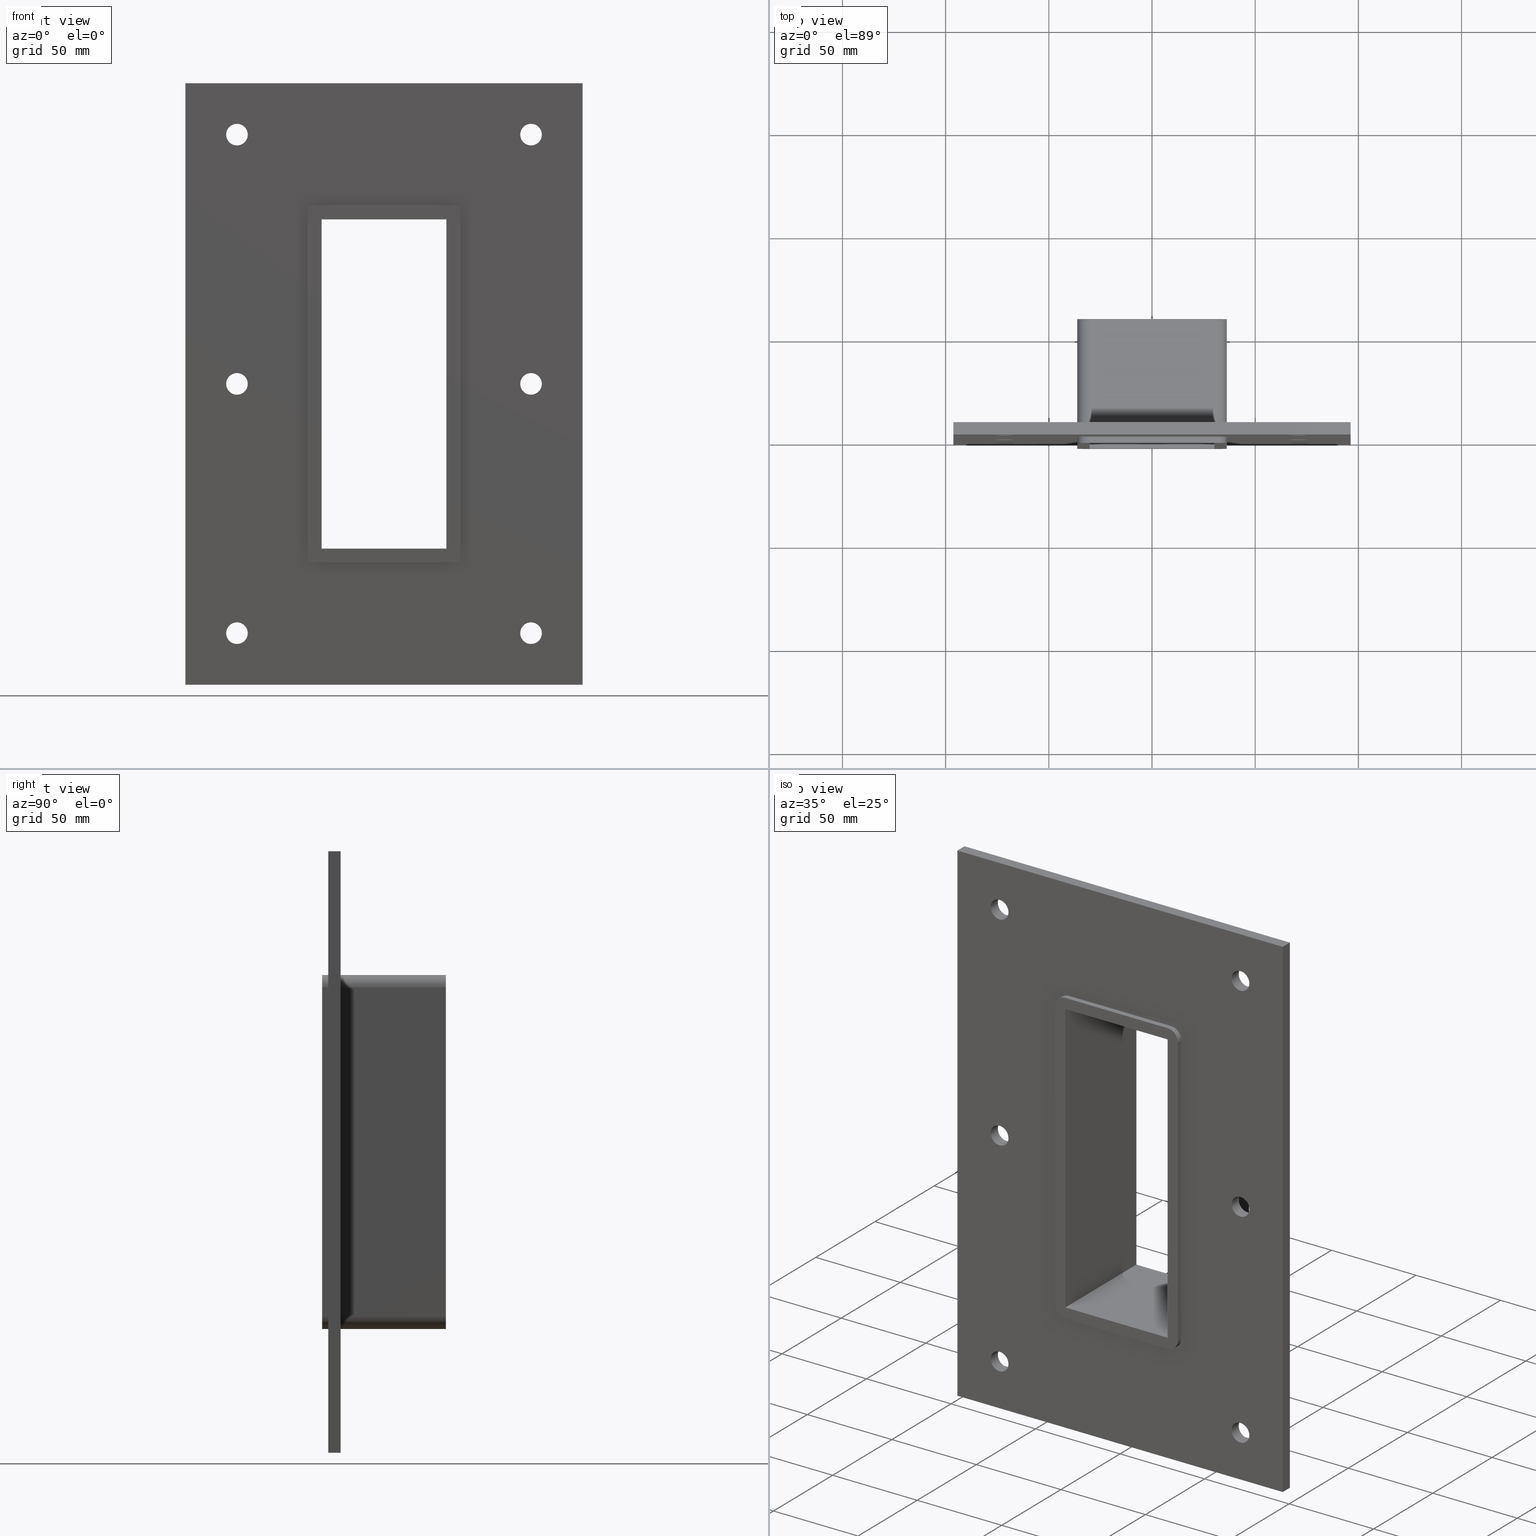
[diagram: canonical four-view strip — front | top / right | iso, engineering-drawing reading convention]
A machine part, canonical four-view strip (front | top / right | iso — engineering-drawing reading convention). The complete STEP part file that produces these views, byte-faithful:
ISO-10303-21;
HEADER;
/****************************************************************
 * Generated by software with PDElib inside                    *
 * PDElib Version v51a, created Wed 11/30/2011                  *
 * ITI Transcendata (http://www.transcendata.com/)              *
 ****************************************************************/
FILE_DESCRIPTION((''),'2;1');
FILE_NAME('L:\\roxtec-se\\Projects\\Ongoing_Projects\\12403 Transit Designer\\Product-data\\Product Data\\Reviwed & Approved\\Review\\GH\\STEP\\GH3X1.stp','2015-02-20T11:21:10',('se-emikul'),(''),'Autodesk Inventor 2013','Autodesk Inventor 2013','');
FILE_SCHEMA(('AUTOMOTIVE_DESIGN { 1 0 10303 214 1 1 1 1 }'));
ENDSEC;
DATA;
#5=APPLICATION_CONTEXT('automotive design');
#6=APPLICATION_PROTOCOL_DEFINITION('International Standard','automotive_design',2001,#5);
#7=PRODUCT_CONTEXT('',#5,'mechanical');
#8=PRODUCT('GH3X1','GH3X1',$,(#7));
#9=PRODUCT_RELATED_PRODUCT_CATEGORY('part',$,(#8));
#10=PRODUCT_DEFINITION_FORMATION('',$,#8);
#11=PRODUCT_DEFINITION_CONTEXT('part definition',#5,'design');
#12=PRODUCT_DEFINITION('',$,#10,#11);
#18=(NAMED_UNIT(*)PLANE_ANGLE_UNIT()SI_UNIT($,.RADIAN.));
#19=DIMENSIONAL_EXPONENTS(0.0,0.0,0.0,0.0,0.0,0.0,0.0);
#20=PLANE_ANGLE_MEASURE_WITH_UNIT(PLANE_ANGLE_MEASURE(0.0174532925),#18);
#24=(CONVERSION_BASED_UNIT('DEGREE',#20)NAMED_UNIT(#19)PLANE_ANGLE_UNIT());
#28=(NAMED_UNIT(*)SI_UNIT($,.STERADIAN.)SOLID_ANGLE_UNIT());
#32=(LENGTH_UNIT()NAMED_UNIT(*)SI_UNIT(.MILLI.,.METRE.));
#34=UNCERTAINTY_MEASURE_WITH_UNIT(LENGTH_MEASURE(0.01),#32,'DISTANCE_ACCURACY_VALUE','');
#36=(GEOMETRIC_REPRESENTATION_CONTEXT(3)GLOBAL_UNCERTAINTY_ASSIGNED_CONTEXT((#34))GLOBAL_UNIT_ASSIGNED_CONTEXT((#24,#28,#32))REPRESENTATION_CONTEXT('None','None'));
#37=AXIS2_PLACEMENT_3D('',#38,#39,#40);
#38=CARTESIAN_POINT('',(0.0,0.0,0.0));
#39=DIRECTION('',(0.0,0.0,1.0));
#40=DIRECTION('',(1.0,0.0,0.0));
#41=SHAPE_REPRESENTATION('',(#37),#36);
#42=PRODUCT_DEFINITION_SHAPE('','',#12);
#43=SHAPE_DEFINITION_REPRESENTATION(#42,#41);
#49=(NAMED_UNIT(*)PLANE_ANGLE_UNIT()SI_UNIT($,.RADIAN.));
#50=DIMENSIONAL_EXPONENTS(0.0,0.0,0.0,0.0,0.0,0.0,0.0);
#51=PLANE_ANGLE_MEASURE_WITH_UNIT(PLANE_ANGLE_MEASURE(0.0174532925),#49);
#55=(CONVERSION_BASED_UNIT('DEGREE',#51)NAMED_UNIT(#50)PLANE_ANGLE_UNIT());
#59=(NAMED_UNIT(*)SI_UNIT($,.STERADIAN.)SOLID_ANGLE_UNIT());
#63=(LENGTH_UNIT()NAMED_UNIT(*)SI_UNIT(.MILLI.,.METRE.));
#65=UNCERTAINTY_MEASURE_WITH_UNIT(LENGTH_MEASURE(0.000001),#63,'DISTANCE_ACCURACY_VALUE','');
#67=(GEOMETRIC_REPRESENTATION_CONTEXT(3)GLOBAL_UNCERTAINTY_ASSIGNED_CONTEXT((#65))GLOBAL_UNIT_ASSIGNED_CONTEXT((#55,#59,#63))REPRESENTATION_CONTEXT('','3D'));
#68=CARTESIAN_POINT('',(-71.250000000000114,354.44110935386709,-120.75));
#69=DIRECTION('',(0.0,-1.0,0.0));
#70=DIRECTION('',(1.0,0.0,0.0));
#71=AXIS2_PLACEMENT_3D('',#68,#69,#70);
#72=CYLINDRICAL_SURFACE('',#71,5.25);
#73=CARTESIAN_POINT('',(-76.500000000000114,6.000000000000014,-120.75));
#74=VERTEX_POINT('',#73);
#75=CARTESIAN_POINT('',(-71.250000000000114,6.000000000000014,-120.75));
#76=DIRECTION('',(0.0,-1.0,0.0));
#77=DIRECTION('',(1.0,0.0,0.0));
#78=AXIS2_PLACEMENT_3D('',#75,#76,#77);
#79=CIRCLE('',#78,5.25);
#80=EDGE_CURVE('',#74,#74,#79,.T.);
#81=ORIENTED_EDGE('',*,*,#80,.F.);
#82=EDGE_LOOP('',(#81));
#83=FACE_OUTER_BOUND('',#82,.T.);
#84=CARTESIAN_POINT('',(-66.000000000000099,0.0,-120.75));
#85=VERTEX_POINT('',#84);
#86=CARTESIAN_POINT('',(-71.250000000000114,0.0,-120.75));
#87=DIRECTION('',(0.0,1.0,0.0));
#88=DIRECTION('',(1.0,0.0,0.0));
#89=AXIS2_PLACEMENT_3D('',#86,#87,#88);
#90=CIRCLE('',#89,5.25);
#91=EDGE_CURVE('',#85,#85,#90,.T.);
#92=ORIENTED_EDGE('',*,*,#91,.F.);
#93=EDGE_LOOP('',(#92));
#94=FACE_BOUND('',#93,.T.);
#95=ADVANCED_FACE('',(#83,#94),#72,.F.);
#96=CARTESIAN_POINT('',(71.249999999999886,354.44110935386709,0.050000000000008));
#97=DIRECTION('',(0.0,-1.0,0.0));
#98=DIRECTION('',(1.0,0.0,0.0));
#99=AXIS2_PLACEMENT_3D('',#96,#97,#98);
#100=CYLINDRICAL_SURFACE('',#99,5.25);
#101=CARTESIAN_POINT('',(65.999999999999886,6.000000000000014,0.050000000000008));
#102=VERTEX_POINT('',#101);
#103=CARTESIAN_POINT('',(71.249999999999886,6.000000000000014,0.050000000000008));
#104=DIRECTION('',(0.0,-1.0,0.0));
#105=DIRECTION('',(1.0,0.0,0.0));
#106=AXIS2_PLACEMENT_3D('',#103,#104,#105);
#107=CIRCLE('',#106,5.25);
#108=EDGE_CURVE('',#102,#102,#107,.T.);
#109=ORIENTED_EDGE('',*,*,#108,.F.);
#110=EDGE_LOOP('',(#109));
#111=FACE_OUTER_BOUND('',#110,.T.);
#112=CARTESIAN_POINT('',(76.499999999999901,0.0,0.050000000000008));
#113=VERTEX_POINT('',#112);
#114=CARTESIAN_POINT('',(71.249999999999886,0.0,0.050000000000008));
#115=DIRECTION('',(0.0,1.0,0.0));
#116=DIRECTION('',(1.0,0.0,0.0));
#117=AXIS2_PLACEMENT_3D('',#114,#115,#116);
#118=CIRCLE('',#117,5.25);
#119=EDGE_CURVE('',#113,#113,#118,.T.);
#120=ORIENTED_EDGE('',*,*,#119,.F.);
#121=EDGE_LOOP('',(#120));
#122=FACE_BOUND('',#121,.T.);
#123=ADVANCED_FACE('',(#111,#122),#100,.F.);
#124=CARTESIAN_POINT('',(-71.250000000000114,354.44110935386709,0.050000000000008));
#125=DIRECTION('',(0.0,-1.0,0.0));
#126=DIRECTION('',(1.0,0.0,0.0));
#127=AXIS2_PLACEMENT_3D('',#124,#125,#126);
#128=CYLINDRICAL_SURFACE('',#127,5.25);
#129=CARTESIAN_POINT('',(-76.500000000000114,6.000000000000014,0.050000000000008));
#130=VERTEX_POINT('',#129);
#131=CARTESIAN_POINT('',(-71.250000000000114,6.000000000000014,0.050000000000008));
#132=DIRECTION('',(0.0,-1.0,0.0));
#133=DIRECTION('',(1.0,0.0,0.0));
#134=AXIS2_PLACEMENT_3D('',#131,#132,#133);
#135=CIRCLE('',#134,5.25);
#136=EDGE_CURVE('',#130,#130,#135,.T.);
#137=ORIENTED_EDGE('',*,*,#136,.F.);
#138=EDGE_LOOP('',(#137));
#139=FACE_OUTER_BOUND('',#138,.T.);
#140=CARTESIAN_POINT('',(-66.000000000000099,0.0,0.050000000000008));
#141=VERTEX_POINT('',#140);
#142=CARTESIAN_POINT('',(-71.250000000000114,0.0,0.050000000000008));
#143=DIRECTION('',(0.0,1.0,0.0));
#144=DIRECTION('',(1.0,0.0,0.0));
#145=AXIS2_PLACEMENT_3D('',#142,#143,#144);
#146=CIRCLE('',#145,5.25);
#147=EDGE_CURVE('',#141,#141,#146,.T.);
#148=ORIENTED_EDGE('',*,*,#147,.F.);
#149=EDGE_LOOP('',(#148));
#150=FACE_BOUND('',#149,.T.);
#151=ADVANCED_FACE('',(#139,#150),#128,.F.);
#152=CARTESIAN_POINT('',(71.249999999999886,354.44110935386709,-120.75));
#153=DIRECTION('',(0.0,-1.0,0.0));
#154=DIRECTION('',(1.0,0.0,0.0));
#155=AXIS2_PLACEMENT_3D('',#152,#153,#154);
#156=CYLINDRICAL_SURFACE('',#155,5.25);
#157=CARTESIAN_POINT('',(65.999999999999886,6.000000000000014,-120.75));
#158=VERTEX_POINT('',#157);
#159=CARTESIAN_POINT('',(71.249999999999886,6.000000000000014,-120.75));
#160=DIRECTION('',(0.0,-1.0,0.0));
#161=DIRECTION('',(1.0,0.0,0.0));
#162=AXIS2_PLACEMENT_3D('',#159,#160,#161);
#163=CIRCLE('',#162,5.25);
#164=EDGE_CURVE('',#158,#158,#163,.T.);
#165=ORIENTED_EDGE('',*,*,#164,.F.);
#166=EDGE_LOOP('',(#165));
#167=FACE_OUTER_BOUND('',#166,.T.);
#168=CARTESIAN_POINT('',(76.499999999999901,0.0,-120.75));
#169=VERTEX_POINT('',#168);
#170=CARTESIAN_POINT('',(71.249999999999886,0.0,-120.75));
#171=DIRECTION('',(0.0,1.0,0.0));
#172=DIRECTION('',(1.0,0.0,0.0));
#173=AXIS2_PLACEMENT_3D('',#170,#171,#172);
#174=CIRCLE('',#173,5.25);
#175=EDGE_CURVE('',#169,#169,#174,.T.);
#176=ORIENTED_EDGE('',*,*,#175,.F.);
#177=EDGE_LOOP('',(#176));
#178=FACE_BOUND('',#177,.T.);
#179=ADVANCED_FACE('',(#167,#178),#156,.F.);
#180=CARTESIAN_POINT('',(-71.250000000000114,354.44110935386709,120.85000000000001));
#181=DIRECTION('',(0.0,-1.0,0.0));
#182=DIRECTION('',(1.0,0.0,0.0));
#183=AXIS2_PLACEMENT_3D('',#180,#181,#182);
#184=CYLINDRICAL_SURFACE('',#183,5.25);
#185=CARTESIAN_POINT('',(-76.500000000000114,6.000000000000014,120.85000000000001));
#186=VERTEX_POINT('',#185);
#187=CARTESIAN_POINT('',(-71.250000000000114,6.000000000000014,120.85000000000001));
#188=DIRECTION('',(0.0,-1.0,0.0));
#189=DIRECTION('',(1.0,0.0,0.0));
#190=AXIS2_PLACEMENT_3D('',#187,#188,#189);
#191=CIRCLE('',#190,5.25);
#192=EDGE_CURVE('',#186,#186,#191,.T.);
#193=ORIENTED_EDGE('',*,*,#192,.F.);
#194=EDGE_LOOP('',(#193));
#195=FACE_OUTER_BOUND('',#194,.T.);
#196=CARTESIAN_POINT('',(-66.000000000000099,0.0,120.85000000000001));
#197=VERTEX_POINT('',#196);
#198=CARTESIAN_POINT('',(-71.250000000000114,0.0,120.85000000000001));
#199=DIRECTION('',(0.0,1.0,0.0));
#200=DIRECTION('',(1.0,0.0,0.0));
#201=AXIS2_PLACEMENT_3D('',#198,#199,#200);
#202=CIRCLE('',#201,5.25);
#203=EDGE_CURVE('',#197,#197,#202,.T.);
#204=ORIENTED_EDGE('',*,*,#203,.F.);
#205=EDGE_LOOP('',(#204));
#206=FACE_BOUND('',#205,.T.);
#207=ADVANCED_FACE('',(#195,#206),#184,.F.);
#208=CARTESIAN_POINT('',(71.249999999999886,354.44110935386709,120.85000000000001));
#209=DIRECTION('',(0.0,-1.0,0.0));
#210=DIRECTION('',(1.0,0.0,0.0));
#211=AXIS2_PLACEMENT_3D('',#208,#209,#210);
#212=CYLINDRICAL_SURFACE('',#211,5.25);
#213=CARTESIAN_POINT('',(65.999999999999886,6.000000000000014,120.85000000000001));
#214=VERTEX_POINT('',#213);
#215=CARTESIAN_POINT('',(71.249999999999886,6.000000000000014,120.85000000000001));
#216=DIRECTION('',(0.0,-1.0,0.0));
#217=DIRECTION('',(1.0,0.0,0.0));
#218=AXIS2_PLACEMENT_3D('',#215,#216,#217);
#219=CIRCLE('',#218,5.25);
#220=EDGE_CURVE('',#214,#214,#219,.T.);
#221=ORIENTED_EDGE('',*,*,#220,.F.);
#222=EDGE_LOOP('',(#221));
#223=FACE_OUTER_BOUND('',#222,.T.);
#224=CARTESIAN_POINT('',(76.499999999999901,0.0,120.85000000000001));
#225=VERTEX_POINT('',#224);
#226=CARTESIAN_POINT('',(71.249999999999886,0.0,120.85000000000001));
#227=DIRECTION('',(0.0,1.0,0.0));
#228=DIRECTION('',(1.0,0.0,0.0));
#229=AXIS2_PLACEMENT_3D('',#226,#227,#228);
#230=CIRCLE('',#229,5.25);
#231=EDGE_CURVE('',#225,#225,#230,.T.);
#232=ORIENTED_EDGE('',*,*,#231,.F.);
#233=EDGE_LOOP('',(#232));
#234=FACE_BOUND('',#233,.T.);
#235=ADVANCED_FACE('',(#223,#234),#212,.F.);
#236=CARTESIAN_POINT('',(-1.321257E-014,6.000000000000001,0.0));
#237=DIRECTION('',(0.0,1.0,0.0));
#238=DIRECTION('',(0.0,0.0,1.0));
#239=AXIS2_PLACEMENT_3D('',#236,#237,#238);
#240=PLANE('',#239);
#241=CARTESIAN_POINT('',(-96.25,6.000000000000001,145.74999999999997));
#242=VERTEX_POINT('',#241);
#243=CARTESIAN_POINT('',(96.25,6.000000000000001,145.74999999999997));
#244=VERTEX_POINT('',#243);
#245=CARTESIAN_POINT('',(-96.25,6.000000000000001,145.74999999999997));
#246=DIRECTION('',(1.0,0.0,0.0));
#247=VECTOR('',#246,192.5);
#248=LINE('',#245,#247);
#249=EDGE_CURVE('',#242,#244,#248,.T.);
#250=ORIENTED_EDGE('',*,*,#249,.T.);
#251=CARTESIAN_POINT('',(96.25,6.000000000000001,-145.74999999999997));
#252=VERTEX_POINT('',#251);
#253=CARTESIAN_POINT('',(96.249999999999986,6.000000000000001,145.74999999999997));
#254=DIRECTION('',(0.0,0.0,-1.0));
#255=VECTOR('',#254,291.49999999999994);
#256=LINE('',#253,#255);
#257=EDGE_CURVE('',#244,#252,#256,.T.);
#258=ORIENTED_EDGE('',*,*,#257,.T.);
#259=CARTESIAN_POINT('',(-96.25,6.000000000000001,-145.74999999999997));
#260=VERTEX_POINT('',#259);
#261=CARTESIAN_POINT('',(96.249999999999986,6.000000000000001,-145.74999999999997));
#262=DIRECTION('',(-1.0,0.0,0.0));
#263=VECTOR('',#262,192.5);
#264=LINE('',#261,#263);
#265=EDGE_CURVE('',#252,#260,#264,.T.);
#266=ORIENTED_EDGE('',*,*,#265,.T.);
#267=CARTESIAN_POINT('',(-96.25,6.000000000000001,-145.74999999999997));
#268=DIRECTION('',(0.0,0.0,1.0));
#269=VECTOR('',#268,291.49999999999994);
#270=LINE('',#267,#269);
#271=EDGE_CURVE('',#260,#242,#270,.T.);
#272=ORIENTED_EDGE('',*,*,#271,.T.);
#273=EDGE_LOOP('',(#250,#258,#266,#272));
#274=FACE_OUTER_BOUND('',#273,.T.);
#275=ORIENTED_EDGE('',*,*,#80,.T.);
#276=EDGE_LOOP('',(#275));
#277=FACE_BOUND('',#276,.T.);
#278=ORIENTED_EDGE('',*,*,#108,.T.);
#279=EDGE_LOOP('',(#278));
#280=FACE_BOUND('',#279,.T.);
#281=ORIENTED_EDGE('',*,*,#136,.T.);
#282=EDGE_LOOP('',(#281));
#283=FACE_BOUND('',#282,.T.);
#284=ORIENTED_EDGE('',*,*,#164,.T.);
#285=EDGE_LOOP('',(#284));
#286=FACE_BOUND('',#285,.T.);
#287=ORIENTED_EDGE('',*,*,#192,.T.);
#288=EDGE_LOOP('',(#287));
#289=FACE_BOUND('',#288,.T.);
#290=ORIENTED_EDGE('',*,*,#220,.T.);
#291=EDGE_LOOP('',(#290));
#292=FACE_BOUND('',#291,.T.);
#293=CARTESIAN_POINT('',(-36.25,6.000000000000001,79.750000000000043));
#294=VERTEX_POINT('',#293);
#295=CARTESIAN_POINT('',(-30.250000000000004,6.000000000000001,85.750000000000028));
#296=VERTEX_POINT('',#295);
#297=CARTESIAN_POINT('',(-30.250000000000004,6.000000000000001,79.750000000000043));
#298=DIRECTION('',(0.0,1.0,0.0));
#299=DIRECTION('',(-0.707106781186547,0.0,0.707106781186547));
#300=AXIS2_PLACEMENT_3D('',#297,#298,#299);
#301=CIRCLE('',#300,6.0);
#302=EDGE_CURVE('',#294,#296,#301,.T.);
#303=ORIENTED_EDGE('',*,*,#302,.F.);
#304=CARTESIAN_POINT('',(-36.25,6.000000000000001,-79.750000000000043));
#305=VERTEX_POINT('',#304);
#306=CARTESIAN_POINT('',(-36.25,6.000000000000001,-79.750000000000043));
#307=DIRECTION('',(0.0,0.0,1.0));
#308=VECTOR('',#307,159.50000000000006);
#309=LINE('',#306,#308);
#310=EDGE_CURVE('',#305,#294,#309,.T.);
#311=ORIENTED_EDGE('',*,*,#310,.F.);
#312=CARTESIAN_POINT('',(-30.250000000000004,6.000000000000001,-85.750000000000028));
#313=VERTEX_POINT('',#312);
#314=CARTESIAN_POINT('',(-30.250000000000004,6.000000000000001,-79.750000000000043));
#315=DIRECTION('',(0.0,1.0,0.0));
#316=DIRECTION('',(-0.707106781186547,0.0,-0.707106781186547));
#317=AXIS2_PLACEMENT_3D('',#314,#315,#316);
#318=CIRCLE('',#317,6.0);
#319=EDGE_CURVE('',#313,#305,#318,.T.);
#320=ORIENTED_EDGE('',*,*,#319,.F.);
#321=CARTESIAN_POINT('',(30.250000000000004,6.000000000000001,-85.750000000000028));
#322=VERTEX_POINT('',#321);
#323=CARTESIAN_POINT('',(30.250000000000004,6.000000000000001,-85.750000000000028));
#324=DIRECTION('',(-1.0,0.0,0.0));
#325=VECTOR('',#324,60.5);
#326=LINE('',#323,#325);
#327=EDGE_CURVE('',#322,#313,#326,.T.);
#328=ORIENTED_EDGE('',*,*,#327,.F.);
#329=CARTESIAN_POINT('',(36.25,6.000000000000001,-79.750000000000043));
#330=VERTEX_POINT('',#329);
#331=CARTESIAN_POINT('',(30.250000000000004,6.000000000000001,-79.750000000000043));
#332=DIRECTION('',(0.0,1.0,0.0));
#333=DIRECTION('',(0.707106781186547,0.0,-0.707106781186547));
#334=AXIS2_PLACEMENT_3D('',#331,#332,#333);
#335=CIRCLE('',#334,6.0);
#336=EDGE_CURVE('',#330,#322,#335,.T.);
#337=ORIENTED_EDGE('',*,*,#336,.F.);
#338=CARTESIAN_POINT('',(36.25,6.000000000000001,79.750000000000028));
#339=VERTEX_POINT('',#338);
#340=CARTESIAN_POINT('',(36.25,6.000000000000001,79.750000000000028));
#341=DIRECTION('',(0.0,0.0,-1.0));
#342=VECTOR('',#341,159.50000000000006);
#343=LINE('',#340,#342);
#344=EDGE_CURVE('',#339,#330,#343,.T.);
#345=ORIENTED_EDGE('',*,*,#344,.F.);
#346=CARTESIAN_POINT('',(30.250000000000004,6.000000000000001,85.750000000000028));
#347=VERTEX_POINT('',#346);
#348=CARTESIAN_POINT('',(30.250000000000004,6.000000000000001,79.750000000000028));
#349=DIRECTION('',(0.0,1.0,0.0));
#350=DIRECTION('',(0.707106781186548,0.0,0.707106781186547));
#351=AXIS2_PLACEMENT_3D('',#348,#349,#350);
#352=CIRCLE('',#351,6.0);
#353=EDGE_CURVE('',#347,#339,#352,.T.);
#354=ORIENTED_EDGE('',*,*,#353,.F.);
#355=CARTESIAN_POINT('',(-30.250000000000004,6.000000000000001,85.750000000000028));
#356=DIRECTION('',(1.0,0.0,0.0));
#357=VECTOR('',#356,60.500000000000014);
#358=LINE('',#355,#357);
#359=EDGE_CURVE('',#296,#347,#358,.T.);
#360=ORIENTED_EDGE('',*,*,#359,.F.);
#361=EDGE_LOOP('',(#303,#311,#320,#328,#337,#345,#354,#360));
#362=FACE_BOUND('',#361,.T.);
#363=ADVANCED_FACE('',(#274,#277,#280,#283,#286,#289,#292,#362),#240,.T.);
#364=CARTESIAN_POINT('',(-1.321257E-014,0.0,0.0));
#365=DIRECTION('',(0.0,1.0,0.0));
#366=DIRECTION('',(0.0,0.0,1.0));
#367=AXIS2_PLACEMENT_3D('',#364,#365,#366);
#368=PLANE('',#367);
#369=CARTESIAN_POINT('',(-96.25,0.0,145.74999999999997));
#370=VERTEX_POINT('',#369);
#371=CARTESIAN_POINT('',(96.249999999999986,0.0,145.74999999999997));
#372=VERTEX_POINT('',#371);
#373=CARTESIAN_POINT('',(-96.25,0.0,145.74999999999997));
#374=DIRECTION('',(1.0,0.0,0.0));
#375=VECTOR('',#374,192.5);
#376=LINE('',#373,#375);
#377=EDGE_CURVE('',#370,#372,#376,.T.);
#378=ORIENTED_EDGE('',*,*,#377,.F.);
#379=CARTESIAN_POINT('',(-96.25,0.0,-145.74999999999997));
#380=VERTEX_POINT('',#379);
#381=CARTESIAN_POINT('',(-96.25,0.0,-145.74999999999997));
#382=DIRECTION('',(0.0,0.0,1.0));
#383=VECTOR('',#382,291.49999999999994);
#384=LINE('',#381,#383);
#385=EDGE_CURVE('',#380,#370,#384,.T.);
#386=ORIENTED_EDGE('',*,*,#385,.F.);
#387=CARTESIAN_POINT('',(96.249999999999986,0.0,-145.74999999999997));
#388=VERTEX_POINT('',#387);
#389=CARTESIAN_POINT('',(96.249999999999986,0.0,-145.74999999999997));
#390=DIRECTION('',(-1.0,0.0,0.0));
#391=VECTOR('',#390,192.5);
#392=LINE('',#389,#391);
#393=EDGE_CURVE('',#388,#380,#392,.T.);
#394=ORIENTED_EDGE('',*,*,#393,.F.);
#395=CARTESIAN_POINT('',(96.249999999999986,0.0,145.74999999999997));
#396=DIRECTION('',(0.0,0.0,-1.0));
#397=VECTOR('',#396,291.49999999999994);
#398=LINE('',#395,#397);
#399=EDGE_CURVE('',#372,#388,#398,.T.);
#400=ORIENTED_EDGE('',*,*,#399,.F.);
#401=EDGE_LOOP('',(#378,#386,#394,#400));
#402=FACE_OUTER_BOUND('',#401,.T.);
#403=ORIENTED_EDGE('',*,*,#91,.T.);
#404=EDGE_LOOP('',(#403));
#405=FACE_BOUND('',#404,.T.);
#406=ORIENTED_EDGE('',*,*,#119,.T.);
#407=EDGE_LOOP('',(#406));
#408=FACE_BOUND('',#407,.T.);
#409=ORIENTED_EDGE('',*,*,#147,.T.);
#410=EDGE_LOOP('',(#409));
#411=FACE_BOUND('',#410,.T.);
#412=ORIENTED_EDGE('',*,*,#175,.T.);
#413=EDGE_LOOP('',(#412));
#414=FACE_BOUND('',#413,.T.);
#415=ORIENTED_EDGE('',*,*,#203,.T.);
#416=EDGE_LOOP('',(#415));
#417=FACE_BOUND('',#416,.T.);
#418=ORIENTED_EDGE('',*,*,#231,.T.);
#419=EDGE_LOOP('',(#418));
#420=FACE_BOUND('',#419,.T.);
#421=CARTESIAN_POINT('',(-30.250000000000004,0.0,85.750000000000028));
#422=VERTEX_POINT('',#421);
#423=CARTESIAN_POINT('',(-36.25,0.0,79.750000000000043));
#424=VERTEX_POINT('',#423);
#425=CARTESIAN_POINT('',(-30.250000000000004,0.0,79.750000000000043));
#426=DIRECTION('',(0.0,-1.0,0.0));
#427=DIRECTION('',(-0.707106781186547,0.0,0.707106781186547));
#428=AXIS2_PLACEMENT_3D('',#425,#426,#427);
#429=CIRCLE('',#428,6.0);
#430=EDGE_CURVE('',#422,#424,#429,.T.);
#431=ORIENTED_EDGE('',*,*,#430,.F.);
#432=CARTESIAN_POINT('',(30.250000000000004,0.0,85.750000000000028));
#433=VERTEX_POINT('',#432);
#434=CARTESIAN_POINT('',(30.250000000000007,0.0,85.750000000000028));
#435=DIRECTION('',(-1.0,0.0,0.0));
#436=VECTOR('',#435,60.500000000000014);
#437=LINE('',#434,#436);
#438=EDGE_CURVE('',#433,#422,#437,.T.);
#439=ORIENTED_EDGE('',*,*,#438,.F.);
#440=CARTESIAN_POINT('',(36.25,0.0,79.750000000000028));
#441=VERTEX_POINT('',#440);
#442=CARTESIAN_POINT('',(30.250000000000004,0.0,79.750000000000028));
#443=DIRECTION('',(0.0,-1.0,0.0));
#444=DIRECTION('',(0.707106781186548,0.0,0.707106781186547));
#445=AXIS2_PLACEMENT_3D('',#442,#443,#444);
#446=CIRCLE('',#445,6.0);
#447=EDGE_CURVE('',#441,#433,#446,.T.);
#448=ORIENTED_EDGE('',*,*,#447,.F.);
#449=CARTESIAN_POINT('',(36.25,0.0,-79.750000000000043));
#450=VERTEX_POINT('',#449);
#451=CARTESIAN_POINT('',(36.25,0.0,-79.750000000000028));
#452=DIRECTION('',(0.0,0.0,1.0));
#453=VECTOR('',#452,159.50000000000006);
#454=LINE('',#451,#453);
#455=EDGE_CURVE('',#450,#441,#454,.T.);
#456=ORIENTED_EDGE('',*,*,#455,.F.);
#457=CARTESIAN_POINT('',(30.250000000000004,0.0,-85.750000000000028));
#458=VERTEX_POINT('',#457);
#459=CARTESIAN_POINT('',(30.250000000000004,0.0,-79.750000000000043));
#460=DIRECTION('',(0.0,-1.0,0.0));
#461=DIRECTION('',(0.707106781186547,0.0,-0.707106781186547));
#462=AXIS2_PLACEMENT_3D('',#459,#460,#461);
#463=CIRCLE('',#462,6.0);
#464=EDGE_CURVE('',#458,#450,#463,.T.);
#465=ORIENTED_EDGE('',*,*,#464,.F.);
#466=CARTESIAN_POINT('',(-30.250000000000004,0.0,-85.750000000000028));
#467=VERTEX_POINT('',#466);
#468=CARTESIAN_POINT('',(-30.25,0.0,-85.750000000000028));
#469=DIRECTION('',(1.0,0.0,0.0));
#470=VECTOR('',#469,60.5);
#471=LINE('',#468,#470);
#472=EDGE_CURVE('',#467,#458,#471,.T.);
#473=ORIENTED_EDGE('',*,*,#472,.F.);
#474=CARTESIAN_POINT('',(-36.25,0.0,-79.750000000000043));
#475=VERTEX_POINT('',#474);
#476=CARTESIAN_POINT('',(-30.250000000000004,0.0,-79.750000000000043));
#477=DIRECTION('',(0.0,-1.0,0.0));
#478=DIRECTION('',(-0.707106781186547,0.0,-0.707106781186547));
#479=AXIS2_PLACEMENT_3D('',#476,#477,#478);
#480=CIRCLE('',#479,6.0);
#481=EDGE_CURVE('',#475,#467,#480,.T.);
#482=ORIENTED_EDGE('',*,*,#481,.F.);
#483=CARTESIAN_POINT('',(-36.25,0.0,79.750000000000028));
#484=DIRECTION('',(0.0,0.0,-1.0));
#485=VECTOR('',#484,159.50000000000006);
#486=LINE('',#483,#485);
#487=EDGE_CURVE('',#424,#475,#486,.T.);
#488=ORIENTED_EDGE('',*,*,#487,.F.);
#489=EDGE_LOOP('',(#431,#439,#448,#456,#465,#473,#482,#488));
#490=FACE_BOUND('',#489,.T.);
#491=ADVANCED_FACE('',(#402,#405,#408,#411,#414,#417,#420,#490),#368,.F.);
#492=CARTESIAN_POINT('',(-96.25,0.0,-145.74999999999997));
#493=DIRECTION('',(-1.0,0.0,0.0));
#494=DIRECTION('',(0.0,0.0,1.0));
#495=AXIS2_PLACEMENT_3D('',#492,#493,#494);
#496=PLANE('',#495);
#497=ORIENTED_EDGE('',*,*,#385,.T.);
#498=CARTESIAN_POINT('',(-96.25,0.0,145.74999999999997));
#499=DIRECTION('',(0.0,1.0,0.0));
#500=VECTOR('',#499,6.000000000000001);
#501=LINE('',#498,#500);
#502=EDGE_CURVE('',#370,#242,#501,.T.);
#503=ORIENTED_EDGE('',*,*,#502,.T.);
#504=ORIENTED_EDGE('',*,*,#271,.F.);
#505=CARTESIAN_POINT('',(-96.25,0.0,-145.74999999999997));
#506=DIRECTION('',(0.0,1.0,0.0));
#507=VECTOR('',#506,6.000000000000001);
#508=LINE('',#505,#507);
#509=EDGE_CURVE('',#380,#260,#508,.T.);
#510=ORIENTED_EDGE('',*,*,#509,.F.);
#511=EDGE_LOOP('',(#497,#503,#504,#510));
#512=FACE_OUTER_BOUND('',#511,.T.);
#513=ADVANCED_FACE('',(#512),#496,.T.);
#514=CARTESIAN_POINT('',(96.249999999999986,0.0,-145.74999999999997));
#515=DIRECTION('',(0.0,0.0,-1.0));
#516=DIRECTION('',(-1.0,0.0,0.0));
#517=AXIS2_PLACEMENT_3D('',#514,#515,#516);
#518=PLANE('',#517);
#519=ORIENTED_EDGE('',*,*,#393,.T.);
#520=ORIENTED_EDGE('',*,*,#509,.T.);
#521=ORIENTED_EDGE('',*,*,#265,.F.);
#522=CARTESIAN_POINT('',(96.249999999999986,0.0,-145.74999999999997));
#523=DIRECTION('',(0.0,1.0,0.0));
#524=VECTOR('',#523,6.000000000000001);
#525=LINE('',#522,#524);
#526=EDGE_CURVE('',#388,#252,#525,.T.);
#527=ORIENTED_EDGE('',*,*,#526,.F.);
#528=EDGE_LOOP('',(#519,#520,#521,#527));
#529=FACE_OUTER_BOUND('',#528,.T.);
#530=ADVANCED_FACE('',(#529),#518,.T.);
#531=CARTESIAN_POINT('',(96.249999999999986,0.0,145.74999999999997));
#532=DIRECTION('',(1.0,0.0,0.0));
#533=DIRECTION('',(0.0,0.0,-1.0));
#534=AXIS2_PLACEMENT_3D('',#531,#532,#533);
#535=PLANE('',#534);
#536=ORIENTED_EDGE('',*,*,#399,.T.);
#537=ORIENTED_EDGE('',*,*,#526,.T.);
#538=ORIENTED_EDGE('',*,*,#257,.F.);
#539=CARTESIAN_POINT('',(96.249999999999986,0.0,145.74999999999997));
#540=DIRECTION('',(0.0,1.0,0.0));
#541=VECTOR('',#540,6.000000000000001);
#542=LINE('',#539,#541);
#543=EDGE_CURVE('',#372,#244,#542,.T.);
#544=ORIENTED_EDGE('',*,*,#543,.F.);
#545=EDGE_LOOP('',(#536,#537,#538,#544));
#546=FACE_OUTER_BOUND('',#545,.T.);
#547=ADVANCED_FACE('',(#546),#535,.T.);
#548=CARTESIAN_POINT('',(-96.25,0.0,145.74999999999997));
#549=DIRECTION('',(0.0,0.0,1.0));
#550=DIRECTION('',(1.0,0.0,0.0));
#551=AXIS2_PLACEMENT_3D('',#548,#549,#550);
#552=PLANE('',#551);
#553=ORIENTED_EDGE('',*,*,#377,.T.);
#554=ORIENTED_EDGE('',*,*,#543,.T.);
#555=ORIENTED_EDGE('',*,*,#249,.F.);
#556=ORIENTED_EDGE('',*,*,#502,.F.);
#557=EDGE_LOOP('',(#553,#554,#555,#556));
#558=FACE_OUTER_BOUND('',#557,.T.);
#559=ADVANCED_FACE('',(#558),#552,.T.);
#560=CARTESIAN_POINT('',(-30.249999999999986,0.0,-79.750000000000014));
#561=DIRECTION('',(-1.0,0.0,0.0));
#562=DIRECTION('',(0.0,0.0,1.0));
#563=AXIS2_PLACEMENT_3D('',#560,#561,#562);
#564=PLANE('',#563);
#565=CARTESIAN_POINT('',(-30.249999999999986,-3.0,-79.750000000000014));
#566=VERTEX_POINT('',#565);
#567=CARTESIAN_POINT('',(-30.249999999999986,57.0,-79.750000000000014));
#568=VERTEX_POINT('',#567);
#569=CARTESIAN_POINT('',(-30.249999999999986,-3.0,-79.750000000000014));
#570=DIRECTION('',(0.0,1.0,0.0));
#571=VECTOR('',#570,60.0);
#572=LINE('',#569,#571);
#573=EDGE_CURVE('',#566,#568,#572,.T.);
#574=ORIENTED_EDGE('',*,*,#573,.T.);
#575=CARTESIAN_POINT('',(-30.249999999999986,57.0,79.749999999999972));
#576=VERTEX_POINT('',#575);
#577=CARTESIAN_POINT('',(-30.249999999999986,57.0,79.749999999999972));
#578=DIRECTION('',(0.0,0.0,-1.0));
#579=VECTOR('',#578,159.5);
#580=LINE('',#577,#579);
#581=EDGE_CURVE('',#576,#568,#580,.T.);
#582=ORIENTED_EDGE('',*,*,#581,.F.);
#583=CARTESIAN_POINT('',(-30.249999999999986,-3.0,79.749999999999972));
#584=VERTEX_POINT('',#583);
#585=CARTESIAN_POINT('',(-30.249999999999986,-3.0,79.749999999999972));
#586=DIRECTION('',(0.0,1.0,0.0));
#587=VECTOR('',#586,60.0);
#588=LINE('',#585,#587);
#589=EDGE_CURVE('',#584,#576,#588,.T.);
#590=ORIENTED_EDGE('',*,*,#589,.F.);
#591=CARTESIAN_POINT('',(-30.249999999999986,-3.0,-79.750000000000014));
#592=DIRECTION('',(0.0,0.0,1.0));
#593=VECTOR('',#592,159.5);
#594=LINE('',#591,#593);
#595=EDGE_CURVE('',#566,#584,#594,.T.);
#596=ORIENTED_EDGE('',*,*,#595,.F.);
#597=EDGE_LOOP('',(#574,#582,#590,#596));
#598=FACE_OUTER_BOUND('',#597,.T.);
#599=ADVANCED_FACE('',(#598),#564,.F.);
#600=CARTESIAN_POINT('',(30.250000000000004,0.0,-79.750000000000043));
#601=DIRECTION('',(0.0,1.0,0.0));
#602=DIRECTION('',(0.707106781186547,0.0,-0.707106781186547));
#603=AXIS2_PLACEMENT_3D('',#600,#601,#602);
#604=CYLINDRICAL_SURFACE('',#603,6.000000000000001);
#605=ORIENTED_EDGE('',*,*,#464,.T.);
#606=CARTESIAN_POINT('',(36.25,-3.0,-79.750000000000057));
#607=VERTEX_POINT('',#606);
#608=CARTESIAN_POINT('',(36.25,0.0,-79.750000000000043));
#609=DIRECTION('',(0.0,-1.0,0.0));
#610=VECTOR('',#609,3.0);
#611=LINE('',#608,#610);
#612=EDGE_CURVE('',#450,#607,#611,.T.);
#613=ORIENTED_EDGE('',*,*,#612,.T.);
#614=CARTESIAN_POINT('',(30.250000000000004,-3.0,-85.750000000000028));
#615=VERTEX_POINT('',#614);
#616=CARTESIAN_POINT('',(30.250000000000004,-3.0,-79.750000000000043));
#617=DIRECTION('',(0.0,1.0,0.0));
#618=DIRECTION('',(0.707106781186547,0.0,-0.707106781186547));
#619=AXIS2_PLACEMENT_3D('',#616,#617,#618);
#620=CIRCLE('',#619,6.0);
#621=EDGE_CURVE('',#607,#615,#620,.T.);
#622=ORIENTED_EDGE('',*,*,#621,.T.);
#623=CARTESIAN_POINT('',(30.250000000000004,-3.0,-85.750000000000028));
#624=DIRECTION('',(0.0,1.0,0.0));
#625=VECTOR('',#624,3.0);
#626=LINE('',#623,#625);
#627=EDGE_CURVE('',#615,#458,#626,.T.);
#628=ORIENTED_EDGE('',*,*,#627,.T.);
#629=EDGE_LOOP('',(#605,#613,#622,#628));
#630=FACE_OUTER_BOUND('',#629,.T.);
#631=ADVANCED_FACE('',(#630),#604,.T.);
#632=CARTESIAN_POINT('',(30.250000000000004,0.0,-79.750000000000043));
#633=DIRECTION('',(0.0,1.0,0.0));
#634=DIRECTION('',(0.707106781186547,0.0,-0.707106781186547));
#635=AXIS2_PLACEMENT_3D('',#632,#633,#634);
#636=CYLINDRICAL_SURFACE('',#635,6.000000000000001);
#637=ORIENTED_EDGE('',*,*,#336,.T.);
#638=CARTESIAN_POINT('',(30.250000000000004,57.0,-85.750000000000028));
#639=VERTEX_POINT('',#638);
#640=CARTESIAN_POINT('',(30.250000000000004,6.000000000000001,-85.750000000000028));
#641=DIRECTION('',(0.0,1.0,0.0));
#642=VECTOR('',#641,51.0);
#643=LINE('',#640,#642);
#644=EDGE_CURVE('',#322,#639,#643,.T.);
#645=ORIENTED_EDGE('',*,*,#644,.T.);
#646=CARTESIAN_POINT('',(36.25,57.0,-79.750000000000057));
#647=VERTEX_POINT('',#646);
#648=CARTESIAN_POINT('',(30.250000000000004,57.0,-79.750000000000043));
#649=DIRECTION('',(0.0,-1.0,0.0));
#650=DIRECTION('',(0.707106781186547,0.0,-0.707106781186547));
#651=AXIS2_PLACEMENT_3D('',#648,#649,#650);
#652=CIRCLE('',#651,6.0);
#653=EDGE_CURVE('',#639,#647,#652,.T.);
#654=ORIENTED_EDGE('',*,*,#653,.T.);
#655=CARTESIAN_POINT('',(36.25,57.0,-79.750000000000043));
#656=DIRECTION('',(0.0,-1.0,0.0));
#657=VECTOR('',#656,51.0);
#658=LINE('',#655,#657);
#659=EDGE_CURVE('',#647,#330,#658,.T.);
#660=ORIENTED_EDGE('',*,*,#659,.T.);
#661=EDGE_LOOP('',(#637,#645,#654,#660));
#662=FACE_OUTER_BOUND('',#661,.T.);
#663=ADVANCED_FACE('',(#662),#636,.T.);
#664=CARTESIAN_POINT('',(36.25,0.0,-85.750000000000028));
#665=DIRECTION('',(0.0,0.0,-1.0));
#666=DIRECTION('',(-1.0,0.0,0.0));
#667=AXIS2_PLACEMENT_3D('',#664,#665,#666);
#668=PLANE('',#667);
#669=ORIENTED_EDGE('',*,*,#472,.T.);
#670=ORIENTED_EDGE('',*,*,#627,.F.);
#671=CARTESIAN_POINT('',(-30.250000000000004,-3.0,-85.750000000000028));
#672=VERTEX_POINT('',#671);
#673=CARTESIAN_POINT('',(-30.25,-3.0,-85.750000000000028));
#674=DIRECTION('',(1.0,0.0,0.0));
#675=VECTOR('',#674,60.5);
#676=LINE('',#673,#675);
#677=EDGE_CURVE('',#672,#615,#676,.T.);
#678=ORIENTED_EDGE('',*,*,#677,.F.);
#679=CARTESIAN_POINT('',(-30.250000000000004,0.0,-85.750000000000028));
#680=DIRECTION('',(0.0,-1.0,0.0));
#681=VECTOR('',#680,3.0);
#682=LINE('',#679,#681);
#683=EDGE_CURVE('',#467,#672,#682,.T.);
#684=ORIENTED_EDGE('',*,*,#683,.F.);
#685=EDGE_LOOP('',(#669,#670,#678,#684));
#686=FACE_OUTER_BOUND('',#685,.T.);
#687=ADVANCED_FACE('',(#686),#668,.T.);
#688=CARTESIAN_POINT('',(36.25,0.0,-85.750000000000028));
#689=DIRECTION('',(0.0,0.0,-1.0));
#690=DIRECTION('',(-1.0,0.0,0.0));
#691=AXIS2_PLACEMENT_3D('',#688,#689,#690);
#692=PLANE('',#691);
#693=ORIENTED_EDGE('',*,*,#327,.T.);
#694=CARTESIAN_POINT('',(-30.250000000000004,57.0,-85.750000000000028));
#695=VERTEX_POINT('',#694);
#696=CARTESIAN_POINT('',(-30.250000000000004,57.0,-85.750000000000028));
#697=DIRECTION('',(0.0,-1.0,0.0));
#698=VECTOR('',#697,51.0);
#699=LINE('',#696,#698);
#700=EDGE_CURVE('',#695,#313,#699,.T.);
#701=ORIENTED_EDGE('',*,*,#700,.F.);
#702=CARTESIAN_POINT('',(30.250000000000004,57.0,-85.750000000000028));
#703=DIRECTION('',(-1.0,0.0,0.0));
#704=VECTOR('',#703,60.5);
#705=LINE('',#702,#704);
#706=EDGE_CURVE('',#639,#695,#705,.T.);
#707=ORIENTED_EDGE('',*,*,#706,.F.);
#708=ORIENTED_EDGE('',*,*,#644,.F.);
#709=EDGE_LOOP('',(#693,#701,#707,#708));
#710=FACE_OUTER_BOUND('',#709,.T.);
#711=ADVANCED_FACE('',(#710),#692,.T.);
#712=CARTESIAN_POINT('',(36.25,0.0,85.75));
#713=DIRECTION('',(1.0,0.0,0.0));
#714=DIRECTION('',(0.0,0.0,-1.0));
#715=AXIS2_PLACEMENT_3D('',#712,#713,#714);
#716=PLANE('',#715);
#717=ORIENTED_EDGE('',*,*,#455,.T.);
#718=CARTESIAN_POINT('',(36.25,-3.0,79.750000000000028));
#719=VERTEX_POINT('',#718);
#720=CARTESIAN_POINT('',(36.25,-3.0,79.750000000000028));
#721=DIRECTION('',(0.0,1.0,0.0));
#722=VECTOR('',#721,3.0);
#723=LINE('',#720,#722);
#724=EDGE_CURVE('',#719,#441,#723,.T.);
#725=ORIENTED_EDGE('',*,*,#724,.F.);
#726=CARTESIAN_POINT('',(36.25,-3.0,-79.750000000000057));
#727=DIRECTION('',(0.0,0.0,1.0));
#728=VECTOR('',#727,159.50000000000009);
#729=LINE('',#726,#728);
#730=EDGE_CURVE('',#607,#719,#729,.T.);
#731=ORIENTED_EDGE('',*,*,#730,.F.);
#732=ORIENTED_EDGE('',*,*,#612,.F.);
#733=EDGE_LOOP('',(#717,#725,#731,#732));
#734=FACE_OUTER_BOUND('',#733,.T.);
#735=ADVANCED_FACE('',(#734),#716,.T.);
#736=CARTESIAN_POINT('',(-30.250000000000004,0.0,-79.750000000000043));
#737=DIRECTION('',(0.0,1.0,0.0));
#738=DIRECTION('',(-0.707106781186547,0.0,-0.707106781186547));
#739=AXIS2_PLACEMENT_3D('',#736,#737,#738);
#740=CYLINDRICAL_SURFACE('',#739,6.000000000000001);
#741=ORIENTED_EDGE('',*,*,#481,.T.);
#742=ORIENTED_EDGE('',*,*,#683,.T.);
#743=CARTESIAN_POINT('',(-36.25,-3.0,-79.750000000000043));
#744=VERTEX_POINT('',#743);
#745=CARTESIAN_POINT('',(-30.250000000000004,-3.0,-79.750000000000043));
#746=DIRECTION('',(0.0,1.0,0.0));
#747=DIRECTION('',(-0.707106781186547,0.0,-0.707106781186547));
#748=AXIS2_PLACEMENT_3D('',#745,#746,#747);
#749=CIRCLE('',#748,6.0);
#750=EDGE_CURVE('',#672,#744,#749,.T.);
#751=ORIENTED_EDGE('',*,*,#750,.T.);
#752=CARTESIAN_POINT('',(-36.25,-3.0,-79.750000000000043));
#753=DIRECTION('',(0.0,1.0,0.0));
#754=VECTOR('',#753,3.0);
#755=LINE('',#752,#754);
#756=EDGE_CURVE('',#744,#475,#755,.T.);
#757=ORIENTED_EDGE('',*,*,#756,.T.);
#758=EDGE_LOOP('',(#741,#742,#751,#757));
#759=FACE_OUTER_BOUND('',#758,.T.);
#760=ADVANCED_FACE('',(#759),#740,.T.);
#761=CARTESIAN_POINT('',(-30.250000000000004,0.0,-79.750000000000043));
#762=DIRECTION('',(0.0,1.0,0.0));
#763=DIRECTION('',(-0.707106781186547,0.0,-0.707106781186547));
#764=AXIS2_PLACEMENT_3D('',#761,#762,#763);
#765=CYLINDRICAL_SURFACE('',#764,6.000000000000001);
#766=ORIENTED_EDGE('',*,*,#319,.T.);
#767=CARTESIAN_POINT('',(-36.25,57.0,-79.750000000000043));
#768=VERTEX_POINT('',#767);
#769=CARTESIAN_POINT('',(-36.25,6.000000000000001,-79.750000000000043));
#770=DIRECTION('',(0.0,1.0,0.0));
#771=VECTOR('',#770,51.0);
#772=LINE('',#769,#771);
#773=EDGE_CURVE('',#305,#768,#772,.T.);
#774=ORIENTED_EDGE('',*,*,#773,.T.);
#775=CARTESIAN_POINT('',(-30.250000000000004,57.0,-79.750000000000043));
#776=DIRECTION('',(0.0,-1.0,0.0));
#777=DIRECTION('',(-0.707106781186547,0.0,-0.707106781186547));
#778=AXIS2_PLACEMENT_3D('',#775,#776,#777);
#779=CIRCLE('',#778,6.0);
#780=EDGE_CURVE('',#768,#695,#779,.T.);
#781=ORIENTED_EDGE('',*,*,#780,.T.);
#782=ORIENTED_EDGE('',*,*,#700,.T.);
#783=EDGE_LOOP('',(#766,#774,#781,#782));
#784=FACE_OUTER_BOUND('',#783,.T.);
#785=ADVANCED_FACE('',(#784),#765,.T.);
#786=CARTESIAN_POINT('',(30.250000000000004,0.0,79.750000000000028));
#787=DIRECTION('',(0.0,-1.0,0.0));
#788=DIRECTION('',(0.707106781186548,0.0,0.707106781186547));
#789=AXIS2_PLACEMENT_3D('',#786,#787,#788);
#790=CYLINDRICAL_SURFACE('',#789,6.0);
#791=ORIENTED_EDGE('',*,*,#447,.T.);
#792=CARTESIAN_POINT('',(30.250000000000004,-3.0,85.750000000000028));
#793=VERTEX_POINT('',#792);
#794=CARTESIAN_POINT('',(30.250000000000004,0.0,85.750000000000028));
#795=DIRECTION('',(0.0,-1.0,0.0));
#796=VECTOR('',#795,3.0);
#797=LINE('',#794,#796);
#798=EDGE_CURVE('',#433,#793,#797,.T.);
#799=ORIENTED_EDGE('',*,*,#798,.T.);
#800=CARTESIAN_POINT('',(30.250000000000004,-3.0,79.750000000000028));
#801=DIRECTION('',(0.0,1.0,0.0));
#802=DIRECTION('',(0.707106781186548,0.0,0.707106781186547));
#803=AXIS2_PLACEMENT_3D('',#800,#801,#802);
#804=CIRCLE('',#803,6.0);
#805=EDGE_CURVE('',#793,#719,#804,.T.);
#806=ORIENTED_EDGE('',*,*,#805,.T.);
#807=ORIENTED_EDGE('',*,*,#724,.T.);
#808=EDGE_LOOP('',(#791,#799,#806,#807));
#809=FACE_OUTER_BOUND('',#808,.T.);
#810=ADVANCED_FACE('',(#809),#790,.T.);
#811=CARTESIAN_POINT('',(-36.25,0.0,-85.75));
#812=DIRECTION('',(-1.0,0.0,0.0));
#813=DIRECTION('',(0.0,0.0,1.0));
#814=AXIS2_PLACEMENT_3D('',#811,#812,#813);
#815=PLANE('',#814);
#816=ORIENTED_EDGE('',*,*,#487,.T.);
#817=ORIENTED_EDGE('',*,*,#756,.F.);
#818=CARTESIAN_POINT('',(-36.25,-3.0,79.750000000000057));
#819=VERTEX_POINT('',#818);
#820=CARTESIAN_POINT('',(-36.25,-3.0,79.750000000000057));
#821=DIRECTION('',(0.0,0.0,-1.0));
#822=VECTOR('',#821,159.50000000000011);
#823=LINE('',#820,#822);
#824=EDGE_CURVE('',#819,#744,#823,.T.);
#825=ORIENTED_EDGE('',*,*,#824,.F.);
#826=CARTESIAN_POINT('',(-36.25,0.0,79.750000000000043));
#827=DIRECTION('',(0.0,-1.0,0.0));
#828=VECTOR('',#827,3.0);
#829=LINE('',#826,#828);
#830=EDGE_CURVE('',#424,#819,#829,.T.);
#831=ORIENTED_EDGE('',*,*,#830,.F.);
#832=EDGE_LOOP('',(#816,#817,#825,#831));
#833=FACE_OUTER_BOUND('',#832,.T.);
#834=ADVANCED_FACE('',(#833),#815,.T.);
#835=CARTESIAN_POINT('',(-36.25,0.0,-85.75));
#836=DIRECTION('',(-1.0,0.0,0.0));
#837=DIRECTION('',(0.0,0.0,1.0));
#838=AXIS2_PLACEMENT_3D('',#835,#836,#837);
#839=PLANE('',#838);
#840=ORIENTED_EDGE('',*,*,#310,.T.);
#841=CARTESIAN_POINT('',(-36.25,57.0,79.750000000000057));
#842=VERTEX_POINT('',#841);
#843=CARTESIAN_POINT('',(-36.25,57.0,79.750000000000043));
#844=DIRECTION('',(0.0,-1.0,0.0));
#845=VECTOR('',#844,51.0);
#846=LINE('',#843,#845);
#847=EDGE_CURVE('',#842,#294,#846,.T.);
#848=ORIENTED_EDGE('',*,*,#847,.F.);
#849=CARTESIAN_POINT('',(-36.25,57.0,-79.750000000000043));
#850=DIRECTION('',(0.0,0.0,1.0));
#851=VECTOR('',#850,159.50000000000011);
#852=LINE('',#849,#851);
#853=EDGE_CURVE('',#768,#842,#852,.T.);
#854=ORIENTED_EDGE('',*,*,#853,.F.);
#855=ORIENTED_EDGE('',*,*,#773,.F.);
#856=EDGE_LOOP('',(#840,#848,#854,#855));
#857=FACE_OUTER_BOUND('',#856,.T.);
#858=ADVANCED_FACE('',(#857),#839,.T.);
#859=CARTESIAN_POINT('',(-36.25,0.0,85.750000000000028));
#860=DIRECTION('',(0.0,0.0,1.0));
#861=DIRECTION('',(1.0,0.0,0.0));
#862=AXIS2_PLACEMENT_3D('',#859,#860,#861);
#863=PLANE('',#862);
#864=ORIENTED_EDGE('',*,*,#438,.T.);
#865=CARTESIAN_POINT('',(-30.250000000000004,-3.0,85.750000000000028));
#866=VERTEX_POINT('',#865);
#867=CARTESIAN_POINT('',(-30.250000000000004,-3.0,85.750000000000028));
#868=DIRECTION('',(0.0,1.0,0.0));
#869=VECTOR('',#868,3.0);
#870=LINE('',#867,#869);
#871=EDGE_CURVE('',#866,#422,#870,.T.);
#872=ORIENTED_EDGE('',*,*,#871,.F.);
#873=CARTESIAN_POINT('',(30.25,-3.0,85.750000000000028));
#874=DIRECTION('',(-1.0,0.0,0.0));
#875=VECTOR('',#874,60.5);
#876=LINE('',#873,#875);
#877=EDGE_CURVE('',#793,#866,#876,.T.);
#878=ORIENTED_EDGE('',*,*,#877,.F.);
#879=ORIENTED_EDGE('',*,*,#798,.F.);
#880=EDGE_LOOP('',(#864,#872,#878,#879));
#881=FACE_OUTER_BOUND('',#880,.T.);
#882=ADVANCED_FACE('',(#881),#863,.T.);
#883=CARTESIAN_POINT('',(-30.250000000000004,0.0,79.750000000000043));
#884=DIRECTION('',(0.0,1.0,0.0));
#885=DIRECTION('',(-0.707106781186547,0.0,0.707106781186547));
#886=AXIS2_PLACEMENT_3D('',#883,#884,#885);
#887=CYLINDRICAL_SURFACE('',#886,6.000000000000001);
#888=ORIENTED_EDGE('',*,*,#430,.T.);
#889=ORIENTED_EDGE('',*,*,#830,.T.);
#890=CARTESIAN_POINT('',(-30.250000000000004,-3.0,79.750000000000043));
#891=DIRECTION('',(0.0,1.0,0.0));
#892=DIRECTION('',(-0.707106781186547,0.0,0.707106781186547));
#893=AXIS2_PLACEMENT_3D('',#890,#891,#892);
#894=CIRCLE('',#893,6.0);
#895=EDGE_CURVE('',#819,#866,#894,.T.);
#896=ORIENTED_EDGE('',*,*,#895,.T.);
#897=ORIENTED_EDGE('',*,*,#871,.T.);
#898=EDGE_LOOP('',(#888,#889,#896,#897));
#899=FACE_OUTER_BOUND('',#898,.T.);
#900=ADVANCED_FACE('',(#899),#887,.T.);
#901=CARTESIAN_POINT('',(0.0,-3.0,0.0));
#902=DIRECTION('',(0.0,1.0,0.0));
#903=DIRECTION('',(0.0,0.0,1.0));
#904=AXIS2_PLACEMENT_3D('',#901,#902,#903);
#905=PLANE('',#904);
#906=ORIENTED_EDGE('',*,*,#750,.F.);
#907=ORIENTED_EDGE('',*,*,#677,.T.);
#908=ORIENTED_EDGE('',*,*,#621,.F.);
#909=ORIENTED_EDGE('',*,*,#730,.T.);
#910=ORIENTED_EDGE('',*,*,#805,.F.);
#911=ORIENTED_EDGE('',*,*,#877,.T.);
#912=ORIENTED_EDGE('',*,*,#895,.F.);
#913=ORIENTED_EDGE('',*,*,#824,.T.);
#914=EDGE_LOOP('',(#906,#907,#908,#909,#910,#911,#912,#913));
#915=FACE_OUTER_BOUND('',#914,.T.);
#916=CARTESIAN_POINT('',(30.249999999999986,-3.0,79.749999999999972));
#917=VERTEX_POINT('',#916);
#918=CARTESIAN_POINT('',(30.249999999999986,-3.0,-79.750000000000014));
#919=VERTEX_POINT('',#918);
#920=CARTESIAN_POINT('',(30.249999999999986,-3.0,79.749999999999972));
#921=DIRECTION('',(0.0,0.0,-1.0));
#922=VECTOR('',#921,159.5);
#923=LINE('',#920,#922);
#924=EDGE_CURVE('',#917,#919,#923,.T.);
#925=ORIENTED_EDGE('',*,*,#924,.T.);
#926=CARTESIAN_POINT('',(30.249999999999986,-3.0,-79.750000000000014));
#927=DIRECTION('',(-1.0,0.0,0.0));
#928=VECTOR('',#927,60.499999999999972);
#929=LINE('',#926,#928);
#930=EDGE_CURVE('',#919,#566,#929,.T.);
#931=ORIENTED_EDGE('',*,*,#930,.T.);
#932=ORIENTED_EDGE('',*,*,#595,.T.);
#933=CARTESIAN_POINT('',(-30.249999999999986,-3.0,79.749999999999943));
#934=DIRECTION('',(1.0,0.0,0.0));
#935=VECTOR('',#934,60.499999999999972);
#936=LINE('',#933,#935);
#937=EDGE_CURVE('',#584,#917,#936,.T.);
#938=ORIENTED_EDGE('',*,*,#937,.T.);
#939=EDGE_LOOP('',(#925,#931,#932,#938));
#940=FACE_BOUND('',#939,.T.);
#941=ADVANCED_FACE('',(#915,#940),#905,.F.);
#942=CARTESIAN_POINT('',(-30.250000000000004,0.0,79.750000000000043));
#943=DIRECTION('',(0.0,1.0,0.0));
#944=DIRECTION('',(-0.707106781186547,0.0,0.707106781186547));
#945=AXIS2_PLACEMENT_3D('',#942,#943,#944);
#946=CYLINDRICAL_SURFACE('',#945,6.000000000000001);
#947=ORIENTED_EDGE('',*,*,#302,.T.);
#948=CARTESIAN_POINT('',(-30.250000000000004,57.0,85.750000000000028));
#949=VERTEX_POINT('',#948);
#950=CARTESIAN_POINT('',(-30.250000000000004,6.000000000000001,85.750000000000028));
#951=DIRECTION('',(0.0,1.0,0.0));
#952=VECTOR('',#951,51.0);
#953=LINE('',#950,#952);
#954=EDGE_CURVE('',#296,#949,#953,.T.);
#955=ORIENTED_EDGE('',*,*,#954,.T.);
#956=CARTESIAN_POINT('',(-30.250000000000004,57.0,79.750000000000043));
#957=DIRECTION('',(0.0,-1.0,0.0));
#958=DIRECTION('',(-0.707106781186547,0.0,0.707106781186547));
#959=AXIS2_PLACEMENT_3D('',#956,#957,#958);
#960=CIRCLE('',#959,6.0);
#961=EDGE_CURVE('',#949,#842,#960,.T.);
#962=ORIENTED_EDGE('',*,*,#961,.T.);
#963=ORIENTED_EDGE('',*,*,#847,.T.);
#964=EDGE_LOOP('',(#947,#955,#962,#963));
#965=FACE_OUTER_BOUND('',#964,.T.);
#966=ADVANCED_FACE('',(#965),#946,.T.);
#967=CARTESIAN_POINT('',(-36.25,0.0,85.750000000000028));
#968=DIRECTION('',(0.0,0.0,1.0));
#969=DIRECTION('',(1.0,0.0,0.0));
#970=AXIS2_PLACEMENT_3D('',#967,#968,#969);
#971=PLANE('',#970);
#972=ORIENTED_EDGE('',*,*,#359,.T.);
#973=CARTESIAN_POINT('',(30.250000000000004,57.0,85.750000000000028));
#974=VERTEX_POINT('',#973);
#975=CARTESIAN_POINT('',(30.250000000000004,57.0,85.750000000000028));
#976=DIRECTION('',(0.0,-1.0,0.0));
#977=VECTOR('',#976,51.0);
#978=LINE('',#975,#977);
#979=EDGE_CURVE('',#974,#347,#978,.T.);
#980=ORIENTED_EDGE('',*,*,#979,.F.);
#981=CARTESIAN_POINT('',(-30.250000000000004,57.0,85.750000000000028));
#982=DIRECTION('',(1.0,0.0,0.0));
#983=VECTOR('',#982,60.5);
#984=LINE('',#981,#983);
#985=EDGE_CURVE('',#949,#974,#984,.T.);
#986=ORIENTED_EDGE('',*,*,#985,.F.);
#987=ORIENTED_EDGE('',*,*,#954,.F.);
#988=EDGE_LOOP('',(#972,#980,#986,#987));
#989=FACE_OUTER_BOUND('',#988,.T.);
#990=ADVANCED_FACE('',(#989),#971,.T.);
#991=CARTESIAN_POINT('',(30.250000000000004,0.0,79.750000000000028));
#992=DIRECTION('',(0.0,-1.0,0.0));
#993=DIRECTION('',(0.707106781186548,0.0,0.707106781186547));
#994=AXIS2_PLACEMENT_3D('',#991,#992,#993);
#995=CYLINDRICAL_SURFACE('',#994,6.0);
#996=ORIENTED_EDGE('',*,*,#353,.T.);
#997=CARTESIAN_POINT('',(36.25,57.0,79.750000000000028));
#998=VERTEX_POINT('',#997);
#999=CARTESIAN_POINT('',(36.25,6.000000000000001,79.750000000000028));
#1000=DIRECTION('',(0.0,1.0,0.0));
#1001=VECTOR('',#1000,51.0);
#1002=LINE('',#999,#1001);
#1003=EDGE_CURVE('',#339,#998,#1002,.T.);
#1004=ORIENTED_EDGE('',*,*,#1003,.T.);
#1005=CARTESIAN_POINT('',(30.250000000000004,57.0,79.750000000000028));
#1006=DIRECTION('',(0.0,-1.0,0.0));
#1007=DIRECTION('',(0.707106781186548,0.0,0.707106781186547));
#1008=AXIS2_PLACEMENT_3D('',#1005,#1006,#1007);
#1009=CIRCLE('',#1008,6.0);
#1010=EDGE_CURVE('',#998,#974,#1009,.T.);
#1011=ORIENTED_EDGE('',*,*,#1010,.T.);
#1012=ORIENTED_EDGE('',*,*,#979,.T.);
#1013=EDGE_LOOP('',(#996,#1004,#1011,#1012));
#1014=FACE_OUTER_BOUND('',#1013,.T.);
#1015=ADVANCED_FACE('',(#1014),#995,.T.);
#1016=CARTESIAN_POINT('',(36.25,0.0,85.75));
#1017=DIRECTION('',(1.0,0.0,0.0));
#1018=DIRECTION('',(0.0,0.0,-1.0));
#1019=AXIS2_PLACEMENT_3D('',#1016,#1017,#1018);
#1020=PLANE('',#1019);
#1021=ORIENTED_EDGE('',*,*,#344,.T.);
#1022=ORIENTED_EDGE('',*,*,#659,.F.);
#1023=CARTESIAN_POINT('',(36.25,57.0,79.750000000000028));
#1024=DIRECTION('',(0.0,0.0,-1.0));
#1025=VECTOR('',#1024,159.50000000000009);
#1026=LINE('',#1023,#1025);
#1027=EDGE_CURVE('',#998,#647,#1026,.T.);
#1028=ORIENTED_EDGE('',*,*,#1027,.F.);
#1029=ORIENTED_EDGE('',*,*,#1003,.F.);
#1030=EDGE_LOOP('',(#1021,#1022,#1028,#1029));
#1031=FACE_OUTER_BOUND('',#1030,.T.);
#1032=ADVANCED_FACE('',(#1031),#1020,.T.);
#1033=CARTESIAN_POINT('',(30.249999999999986,0.0,79.749999999999943));
#1034=DIRECTION('',(1.0,0.0,0.0));
#1035=DIRECTION('',(0.0,0.0,-1.0));
#1036=AXIS2_PLACEMENT_3D('',#1033,#1034,#1035);
#1037=PLANE('',#1036);
#1038=CARTESIAN_POINT('',(30.249999999999986,57.0,-79.750000000000014));
#1039=VERTEX_POINT('',#1038);
#1040=CARTESIAN_POINT('',(30.249999999999986,56.999999999999993,-79.750000000000014));
#1041=DIRECTION('',(0.0,-1.0,0.0));
#1042=VECTOR('',#1041,59.999999999999993);
#1043=LINE('',#1040,#1042);
#1044=EDGE_CURVE('',#1039,#919,#1043,.T.);
#1045=ORIENTED_EDGE('',*,*,#1044,.T.);
#1046=ORIENTED_EDGE('',*,*,#924,.F.);
#1047=CARTESIAN_POINT('',(30.249999999999986,57.0,79.749999999999972));
#1048=VERTEX_POINT('',#1047);
#1049=CARTESIAN_POINT('',(30.249999999999986,-3.0,79.749999999999972));
#1050=DIRECTION('',(0.0,1.0,0.0));
#1051=VECTOR('',#1050,60.0);
#1052=LINE('',#1049,#1051);
#1053=EDGE_CURVE('',#917,#1048,#1052,.T.);
#1054=ORIENTED_EDGE('',*,*,#1053,.T.);
#1055=CARTESIAN_POINT('',(30.249999999999986,57.0,-79.750000000000014));
#1056=DIRECTION('',(0.0,0.0,1.0));
#1057=VECTOR('',#1056,159.5);
#1058=LINE('',#1055,#1057);
#1059=EDGE_CURVE('',#1039,#1048,#1058,.T.);
#1060=ORIENTED_EDGE('',*,*,#1059,.F.);
#1061=EDGE_LOOP('',(#1045,#1046,#1054,#1060));
#1062=FACE_OUTER_BOUND('',#1061,.T.);
#1063=ADVANCED_FACE('',(#1062),#1037,.F.);
#1064=CARTESIAN_POINT('',(-30.249999999999986,0.0,79.749999999999943));
#1065=DIRECTION('',(0.0,0.0,1.0));
#1066=DIRECTION('',(1.0,0.0,0.0));
#1067=AXIS2_PLACEMENT_3D('',#1064,#1065,#1066);
#1068=PLANE('',#1067);
#1069=ORIENTED_EDGE('',*,*,#589,.T.);
#1070=CARTESIAN_POINT('',(30.249999999999986,57.0,79.749999999999943));
#1071=DIRECTION('',(-1.0,0.0,0.0));
#1072=VECTOR('',#1071,60.499999999999972);
#1073=LINE('',#1070,#1072);
#1074=EDGE_CURVE('',#1048,#576,#1073,.T.);
#1075=ORIENTED_EDGE('',*,*,#1074,.F.);
#1076=ORIENTED_EDGE('',*,*,#1053,.F.);
#1077=ORIENTED_EDGE('',*,*,#937,.F.);
#1078=EDGE_LOOP('',(#1069,#1075,#1076,#1077));
#1079=FACE_OUTER_BOUND('',#1078,.T.);
#1080=ADVANCED_FACE('',(#1079),#1068,.F.);
#1081=CARTESIAN_POINT('',(30.249999999999986,0.0,-79.750000000000014));
#1082=DIRECTION('',(0.0,0.0,-1.0));
#1083=DIRECTION('',(-1.0,0.0,0.0));
#1084=AXIS2_PLACEMENT_3D('',#1081,#1082,#1083);
#1085=PLANE('',#1084);
#1086=ORIENTED_EDGE('',*,*,#573,.F.);
#1087=ORIENTED_EDGE('',*,*,#930,.F.);
#1088=ORIENTED_EDGE('',*,*,#1044,.F.);
#1089=CARTESIAN_POINT('',(-30.249999999999986,57.0,-79.750000000000014));
#1090=DIRECTION('',(1.0,0.0,0.0));
#1091=VECTOR('',#1090,60.499999999999972);
#1092=LINE('',#1089,#1091);
#1093=EDGE_CURVE('',#568,#1039,#1092,.T.);
#1094=ORIENTED_EDGE('',*,*,#1093,.F.);
#1095=EDGE_LOOP('',(#1086,#1087,#1088,#1094));
#1096=FACE_OUTER_BOUND('',#1095,.T.);
#1097=ADVANCED_FACE('',(#1096),#1085,.F.);
#1098=CARTESIAN_POINT('',(0.0,57.0,0.0));
#1099=DIRECTION('',(0.0,1.0,0.0));
#1100=DIRECTION('',(0.0,0.0,1.0));
#1101=AXIS2_PLACEMENT_3D('',#1098,#1099,#1100);
#1102=PLANE('',#1101);
#1103=ORIENTED_EDGE('',*,*,#780,.F.);
#1104=ORIENTED_EDGE('',*,*,#853,.T.);
#1105=ORIENTED_EDGE('',*,*,#961,.F.);
#1106=ORIENTED_EDGE('',*,*,#985,.T.);
#1107=ORIENTED_EDGE('',*,*,#1010,.F.);
#1108=ORIENTED_EDGE('',*,*,#1027,.T.);
#1109=ORIENTED_EDGE('',*,*,#653,.F.);
#1110=ORIENTED_EDGE('',*,*,#706,.T.);
#1111=EDGE_LOOP('',(#1103,#1104,#1105,#1106,#1107,#1108,#1109,#1110));
#1112=FACE_OUTER_BOUND('',#1111,.T.);
#1113=ORIENTED_EDGE('',*,*,#1059,.T.);
#1114=ORIENTED_EDGE('',*,*,#1074,.T.);
#1115=ORIENTED_EDGE('',*,*,#581,.T.);
#1116=ORIENTED_EDGE('',*,*,#1093,.T.);
#1117=EDGE_LOOP('',(#1113,#1114,#1115,#1116));
#1118=FACE_BOUND('',#1117,.T.);
#1119=ADVANCED_FACE('',(#1112,#1118),#1102,.T.);
#1120=CLOSED_SHELL('',(#95,#123,#151,#179,#207,#235,#363,#491,#513,#530,#547,#559,#599,#631,#663,#687,#711,#735,#760,#785,#810,#834,#858,#882,#900,#941,#966,#990,#1015,#1032,#1063,#1080,#1097,#1119));
#1121=MANIFOLD_SOLID_BREP('GHBG_Base',#1120);
#1122=COLOUR_RGB('Silicon Nitride - Polished',0.800000011920929,0.796078443527222,0.701960802078247);
#1123=FILL_AREA_STYLE_COLOUR('Silicon Nitride - Polished',#1122);
#1124=FILL_AREA_STYLE('Silicon Nitride - Polished',(#1123));
#1125=SURFACE_STYLE_FILL_AREA(#1124);
#1126=SURFACE_SIDE_STYLE('Silicon Nitride - Polished',(#1125));
#1127=SURFACE_STYLE_USAGE(.BOTH.,#1126);
#1128=PRESENTATION_STYLE_ASSIGNMENT((#1127));
#1129=STYLED_ITEM('',(#1128),#1121);
#1130=MECHANICAL_DESIGN_GEOMETRIC_PRESENTATION_REPRESENTATION('',(#1129),#36);
#1131=ADVANCED_BREP_SHAPE_REPRESENTATION('ABSR',(#1121),#36);
#1132=SHAPE_REPRESENTATION_RELATIONSHIP('SRR','None',#1131,#41);
ENDSEC;
END-ISO-10303-21;
